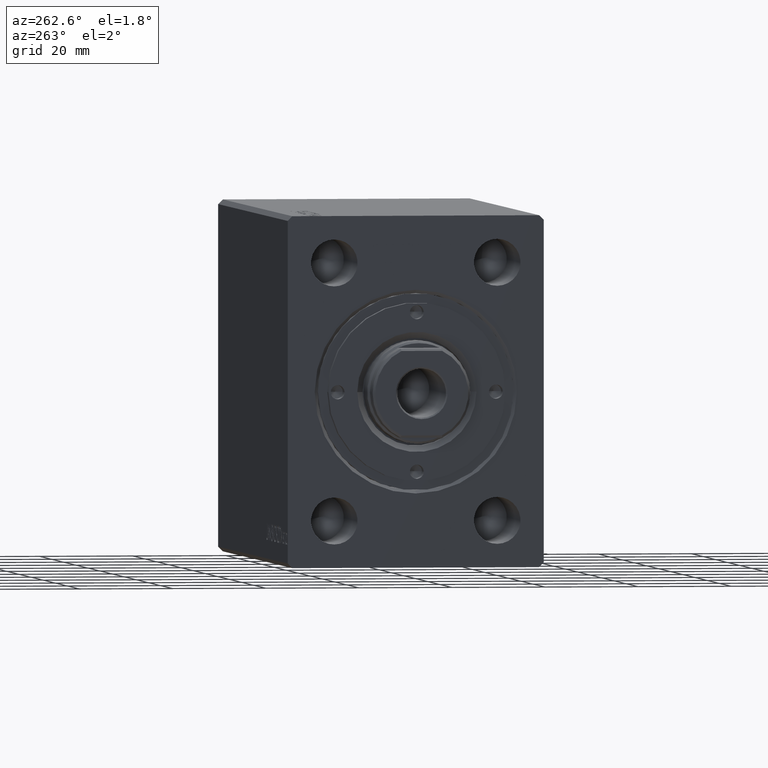
[diagram: clean part render]
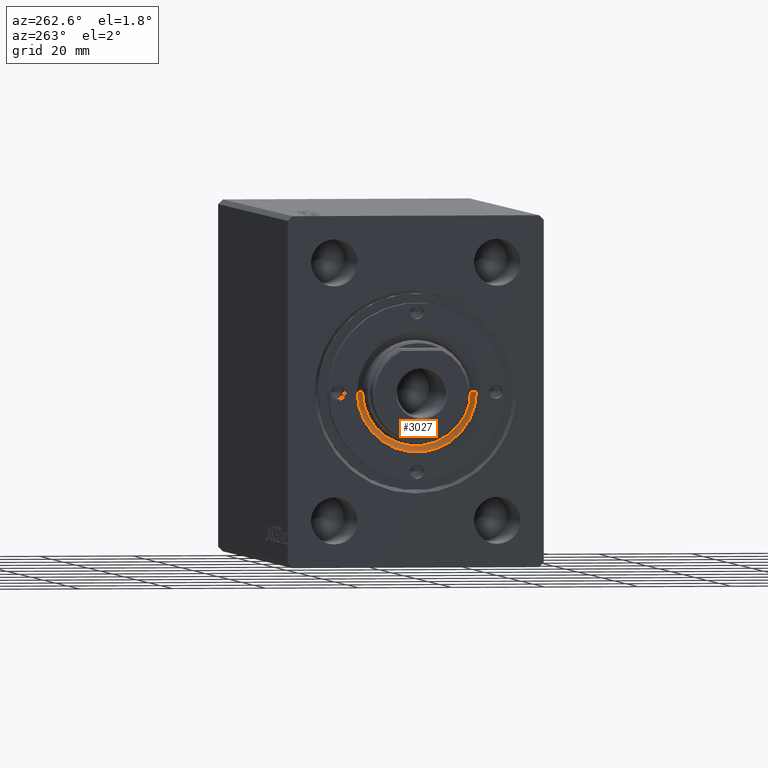
[diagram: same view with one face highlighted and labeled with its STEP entity id]
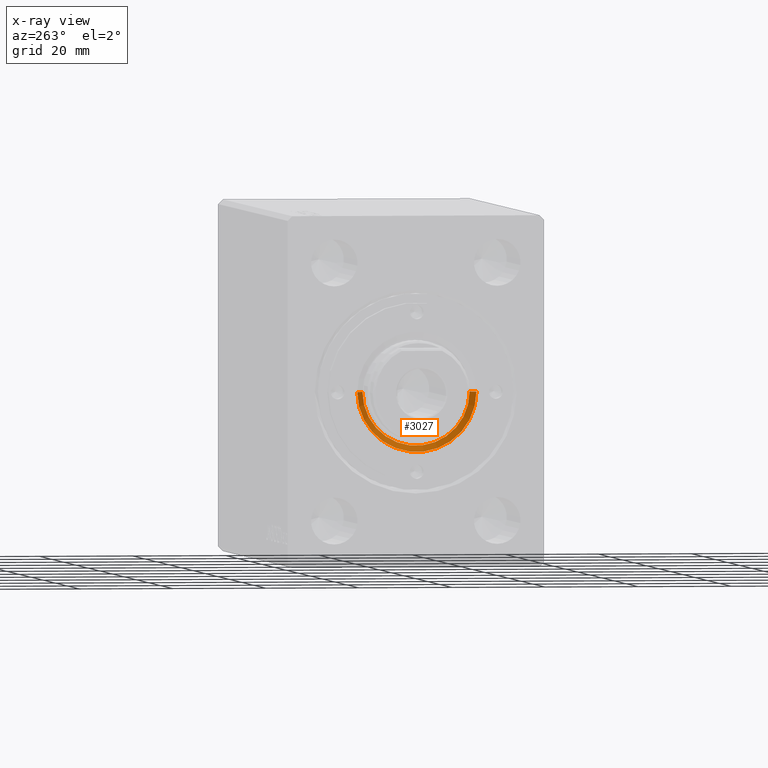
[diagram: x-ray of the same camera — body ghosted, the highlighted face saturated]
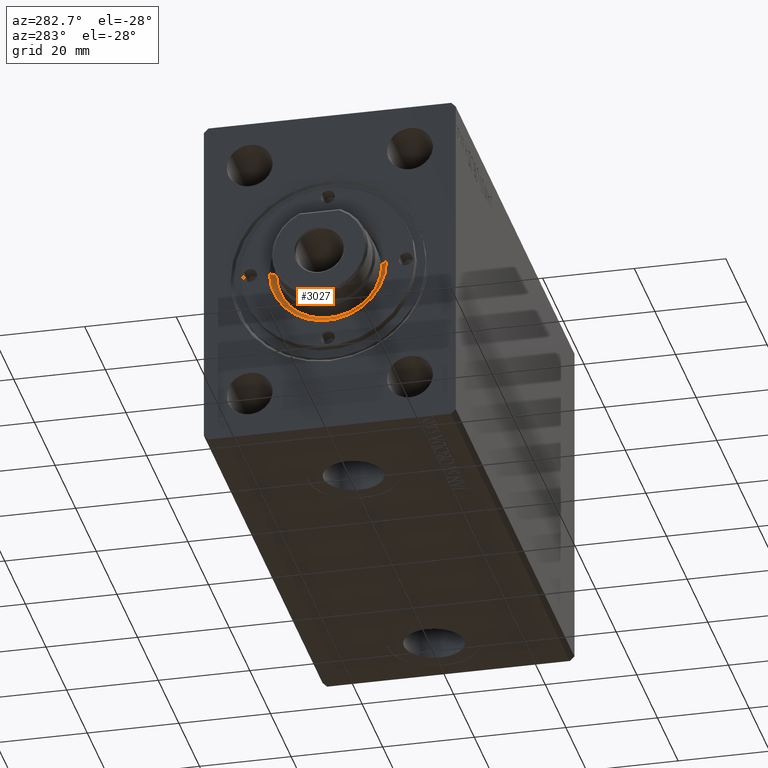
[diagram: same view with one face highlighted and labeled with its STEP entity id]
A machine part, auxiliary view. The second image highlights one B-rep face of the part: STEP entity #3027.
The next image is the same camera in x-ray: the body ghosted, the highlighted face saturated — about 0% of this face is hidden behind the body in this view.
A second angle (auxiliary view) of the same face is appended — the face is thin or edge-on in the first view.
In plain terms, the highlighted conical surface has half-angle 45 deg.
Its self-contained STEP definition (entity closure, byte-faithful):
#1813 = CONICAL_SURFACE ( 'NONE', #41730, 10.99999999999995559, 0.7853981633974533860 ) ;
#1872 = AXIS2_PLACEMENT_3D ( 'NONE', #38997, #29174, #42768 ) ;
#2670 = CARTESIAN_POINT ( 'NONE',  ( 11.50000000000000000, 0.000000000000000000, 8.700000000000038369 ) ) ;
#2966 = DIRECTION ( 'NONE',  ( 0.000000000000000000, 0.000000000000000000, 1.000000000000000000 ) ) ;
#3027 = ADVANCED_FACE ( 'NONE', ( #36457 ), #1813, .F. ) ;
#4694 = EDGE_CURVE ( 'NONE', #6982, #16035, #36063, .T. ) ;
#6982 = VERTEX_POINT ( 'NONE', #2670 ) ;
#7258 = EDGE_CURVE ( 'NONE', #27914, #25779, #27595, .T. ) ;
#8055 = ORIENTED_EDGE ( 'NONE', *, *, #4694, .F. ) ;
#8897 = CARTESIAN_POINT ( 'NONE',  ( -11.50000000000000000, 1.408343819019456176E-15, 8.700000000000038369 ) ) ;
#10674 = EDGE_LOOP ( 'NONE', ( #22061, #8055, #37069, #40104 ) ) ;
#10752 = DIRECTION ( 'NONE',  ( -0.7071067811865512365, 8.659560562354979697E-17, 0.7071067811865439090 ) ) ;
#11261 = DIRECTION ( 'NONE',  ( 1.000000000000000000, 0.000000000000000000, 0.000000000000000000 ) ) ;
#11946 = AXIS2_PLACEMENT_3D ( 'NONE', #21313, #28656, #11261 ) ;
#12837 = DIRECTION ( 'NONE',  ( 1.000000000000000000, 0.000000000000000000, 0.000000000000000000 ) ) ;
#16035 = VERTEX_POINT ( 'NONE', #8897 ) ;
#21313 = CARTESIAN_POINT ( 'NONE',  ( 0.000000000000000000, 0.000000000000000000, 9.999999999999998224 ) ) ;
#21757 = LINE ( 'NONE', #25539, #41565 ) ;
#22061 = ORIENTED_EDGE ( 'NONE', *, *, #36011, .F. ) ;
#23314 = CARTESIAN_POINT ( 'NONE',  ( 0.000000000000000000, 0.000000000000000000, 8.199999999999999289 ) ) ;
#23808 = VECTOR ( 'NONE', #10752, 1000.000000000000000 ) ;
#25539 = CARTESIAN_POINT ( 'NONE',  ( 10.99999999999995559, 0.000000000000000000, 8.199999999999999289 ) ) ;
#25779 = VERTEX_POINT ( 'NONE', #25988 ) ;
#25988 = CARTESIAN_POINT ( 'NONE',  ( 12.79999999999997407, 0.000000000000000000, 9.999999999999998224 ) ) ;
#27595 = CIRCLE ( 'NONE', #11946, 12.79999999999997407 ) ;
#27914 = VERTEX_POINT ( 'NONE', #35063 ) ;
#28656 = DIRECTION ( 'NONE',  ( -0.000000000000000000, -0.000000000000000000, -1.000000000000000000 ) ) ;
#29174 = DIRECTION ( 'NONE',  ( 0.000000000000000000, 0.000000000000000000, 1.000000000000000000 ) ) ;
#31707 = CARTESIAN_POINT ( 'NONE',  ( -10.99999999999995559, 1.347111479062083277E-15, 8.199999999999999289 ) ) ;
#33502 = EDGE_CURVE ( 'NONE', #6982, #25779, #21757, .T. ) ;
#35063 = CARTESIAN_POINT ( 'NONE',  ( -12.79999999999997407, 1.567547902908609029E-15, 9.999999999999998224 ) ) ;
#35345 = DIRECTION ( 'NONE',  ( 0.7071067811865512365, 0.000000000000000000, 0.7071067811865439090 ) ) ;
#36011 = EDGE_CURVE ( 'NONE', #16035, #27914, #41303, .T. ) ;
#36063 = CIRCLE ( 'NONE', #1872, 11.50000000000000000 ) ;
#36457 = FACE_OUTER_BOUND ( 'NONE', #10674, .T. ) ;
#37069 = ORIENTED_EDGE ( 'NONE', *, *, #33502, .T. ) ;
#38997 = CARTESIAN_POINT ( 'NONE',  ( 0.000000000000000000, 0.000000000000000000, 8.700000000000038369 ) ) ;
#40104 = ORIENTED_EDGE ( 'NONE', *, *, #7258, .F. ) ;
#41303 = LINE ( 'NONE', #31707, #23808 ) ;
#41565 = VECTOR ( 'NONE', #35345, 1000.000000000000000 ) ;
#41730 = AXIS2_PLACEMENT_3D ( 'NONE', #23314, #2966, #12837 ) ;
#42768 = DIRECTION ( 'NONE',  ( 1.000000000000000000, 0.000000000000000000, 0.000000000000000000 ) ) ;